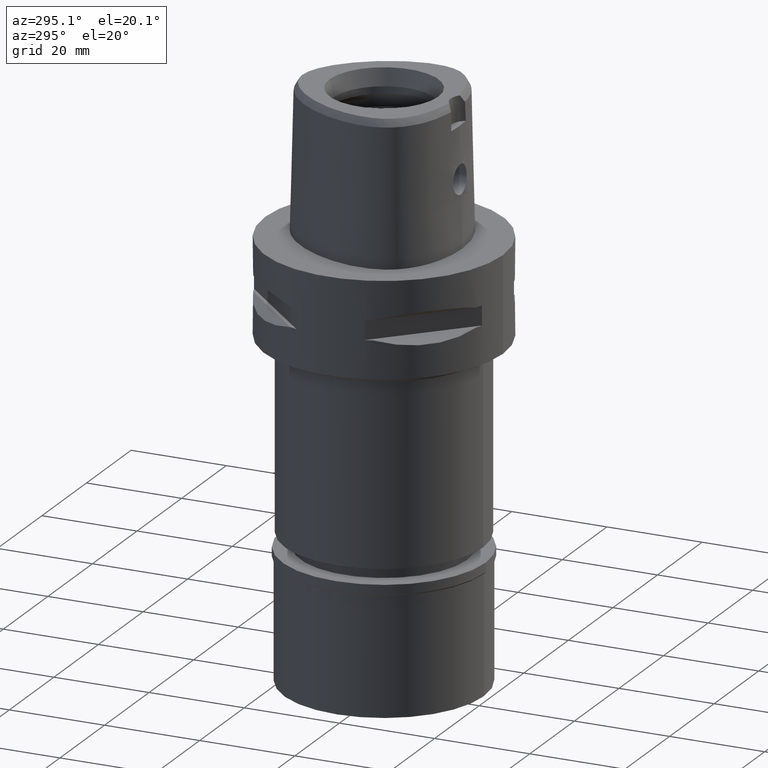
[diagram: clean part render]
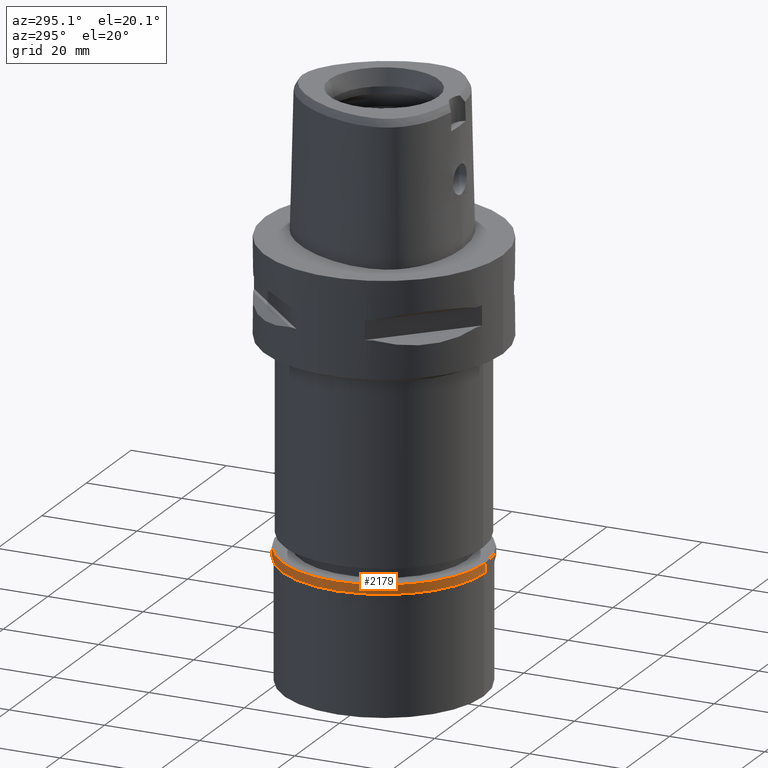
[diagram: same view with one face highlighted and labeled with its STEP entity id]
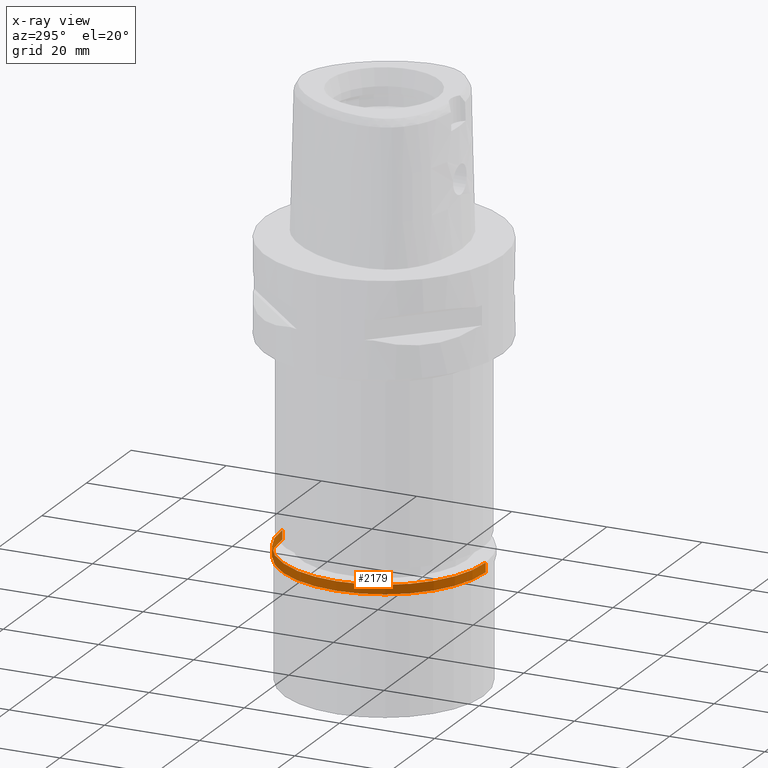
[diagram: x-ray of the same camera — body ghosted, the highlighted face saturated]
A machine part, auxiliary view. The second image highlights one B-rep face of the part: STEP entity #2179.
The next image is the same camera in x-ray: the body ghosted, the highlighted face saturated — about 1% of this face is hidden behind the body in this view.
In plain terms, the highlighted cylindrical surface (partial cylindrical patch) has radius 21.35 mm, axis along (0, 0, -1).
Its self-contained STEP definition (entity closure, byte-faithful):
#287 = CYLINDRICAL_SURFACE ( 'NONE', #4839, 21.35000000000000142 ) ;
#360 = FACE_OUTER_BOUND ( 'NONE', #4405, .T. ) ;
#515 = VERTEX_POINT ( 'NONE', #3460 ) ;
#743 = DIRECTION ( 'NONE',  ( 0.0000000000000000000, 0.0000000000000000000, 1.000000000000000000 ) ) ;
#841 = CIRCLE ( 'NONE', #2415, 21.35000000000000142 ) ;
#880 = ORIENTED_EDGE ( 'NONE', *, *, #1835, .F. ) ;
#898 = ORIENTED_EDGE ( 'NONE', *, *, #2310, .T. ) ;
#1164 = VECTOR ( 'NONE', #4818, 1000.000000000000000 ) ;
#1311 = VERTEX_POINT ( 'NONE', #3045 ) ;
#1363 = VERTEX_POINT ( 'NONE', #2724 ) ;
#1613 = ORIENTED_EDGE ( 'NONE', *, *, #2460, .T. ) ;
#1625 = VERTEX_POINT ( 'NONE', #4706 ) ;
#1756 = CARTESIAN_POINT ( 'NONE',  ( 0.0000000000000000000, 0.0000000000000000000, 0.0000000000000000000 ) ) ;
#1835 = EDGE_CURVE ( 'NONE', #1625, #1363, #3329, .T. ) ;
#1843 = CARTESIAN_POINT ( 'NONE',  ( 0.0000000000000000000, -21.35000000000000142, 0.0000000000000000000 ) ) ;
#2179 = ADVANCED_FACE ( 'NONE', ( #360 ), #287, .T. ) ;
#2244 = DIRECTION ( 'NONE',  ( 0.0000000000000000000, 1.000000000000000000, 0.0000000000000000000 ) ) ;
#2253 = CARTESIAN_POINT ( 'NONE',  ( 0.0000000000000000000, 21.35000000000000142, 0.0000000000000000000 ) ) ;
#2310 = EDGE_CURVE ( 'NONE', #1625, #515, #4135, .T. ) ;
#2415 = AXIS2_PLACEMENT_3D ( 'NONE', #2663, #743, #2244 ) ;
#2460 = EDGE_CURVE ( 'NONE', #1311, #1363, #841, .T. ) ;
#2663 = CARTESIAN_POINT ( 'NONE',  ( 0.0000000000000000000, 0.0000000000000000000, -1.949999999999999956 ) ) ;
#2724 = CARTESIAN_POINT ( 'NONE',  ( 0.0000000000000000000, -21.35000000000000142, -1.949999999999999956 ) ) ;
#2775 = VECTOR ( 'NONE', #3752, 1000.000000000000000 ) ;
#2811 = AXIS2_PLACEMENT_3D ( 'NONE', #3945, #3243, #4237 ) ;
#3045 = CARTESIAN_POINT ( 'NONE',  ( 0.0000000000000000000, 21.35000000000000142, -1.949999999999999956 ) ) ;
#3243 = DIRECTION ( 'NONE',  ( 0.0000000000000000000, 0.0000000000000000000, -1.000000000000000000 ) ) ;
#3267 = DIRECTION ( 'NONE',  ( 0.0000000000000000000, 0.0000000000000000000, -1.000000000000000000 ) ) ;
#3329 = LINE ( 'NONE', #1843, #1164 ) ;
#3460 = CARTESIAN_POINT ( 'NONE',  ( 0.0000000000000000000, 21.35000000000000142, 0.0000000000000000000 ) ) ;
#3752 = DIRECTION ( 'NONE',  ( 0.0000000000000000000, 0.0000000000000000000, -1.000000000000000000 ) ) ;
#3945 = CARTESIAN_POINT ( 'NONE',  ( 0.0000000000000000000, 0.0000000000000000000, 0.0000000000000000000 ) ) ;
#4135 = CIRCLE ( 'NONE', #2811, 21.35000000000000142 ) ;
#4237 = DIRECTION ( 'NONE',  ( 0.0000000000000000000, -1.000000000000000000, 0.0000000000000000000 ) ) ;
#4405 = EDGE_LOOP ( 'NONE', ( #1613, #880, #898, #4626 ) ) ;
#4516 = LINE ( 'NONE', #2253, #2775 ) ;
#4626 = ORIENTED_EDGE ( 'NONE', *, *, #4765, .T. ) ;
#4706 = CARTESIAN_POINT ( 'NONE',  ( 0.0000000000000000000, -21.35000000000000142, 0.0000000000000000000 ) ) ;
#4765 = EDGE_CURVE ( 'NONE', #515, #1311, #4516, .T. ) ;
#4818 = DIRECTION ( 'NONE',  ( 0.0000000000000000000, 0.0000000000000000000, -1.000000000000000000 ) ) ;
#4826 = DIRECTION ( 'NONE',  ( 0.0000000000000000000, -1.000000000000000000, 0.0000000000000000000 ) ) ;
#4839 = AXIS2_PLACEMENT_3D ( 'NONE', #1756, #3267, #4826 ) ;